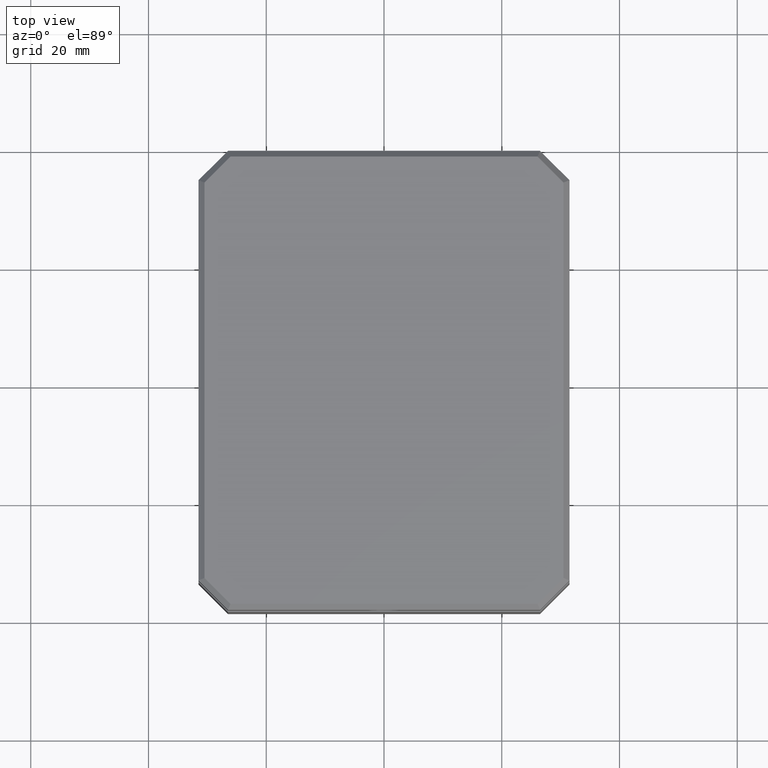
[diagram: clean part render]
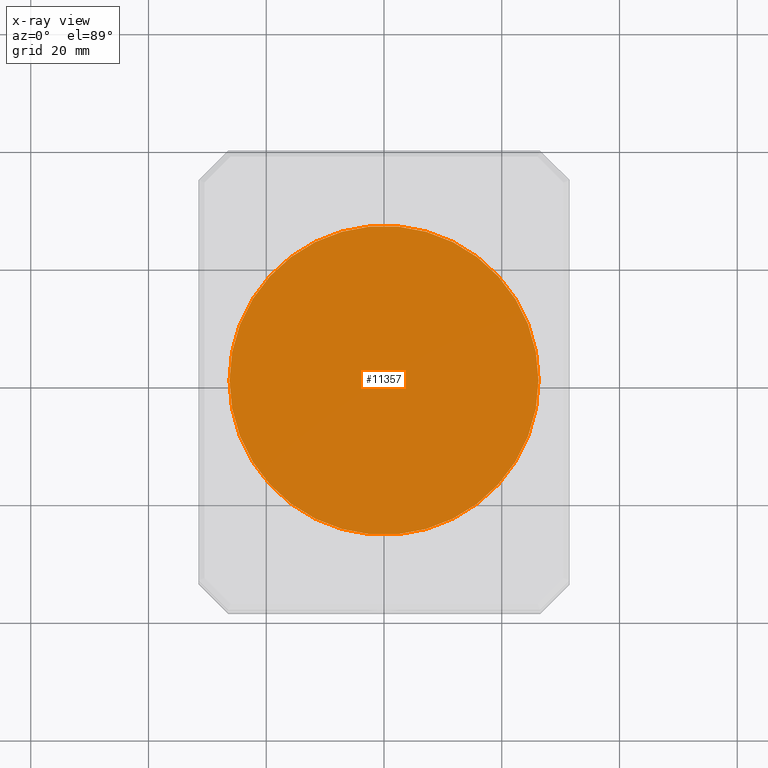
[diagram: x-ray — body ghosted, one internal face saturated and labeled with its STEP entity id]
A machine part, top view, then the same camera in x-ray: the body is ghosted and one INTERNAL B-rep face — a face not visible from any outside direction — is saturated and labeled: STEP entity #11357.
In plain terms, the highlighted planar face has unit normal (0, 0, -1).
Its self-contained STEP definition (entity closure, byte-faithful):
#1351 = DIRECTION ( 'NONE',  ( 0.000000000000000000, 0.000000000000000000, -1.000000000000000000 ) ) ;
#1449 = CARTESIAN_POINT ( 'NONE',  ( 0.000000000000000000, 0.000000000000000000, 8.000000000000000000 ) ) ;
#3208 = AXIS2_PLACEMENT_3D ( 'NONE', #13239, #26807, #5245 ) ;
#3633 = DIRECTION ( 'NONE',  ( -1.000000000000000000, 0.000000000000000000, 0.000000000000000000 ) ) ;
#4143 = FACE_OUTER_BOUND ( 'NONE', #9278, .T. ) ;
#4608 = CIRCLE ( 'NONE', #21871, 26.25000000000000000 ) ;
#4899 = VERTEX_POINT ( 'NONE', #25860 ) ;
#5245 = DIRECTION ( 'NONE',  ( -1.000000000000000000, 0.000000000000000000, 0.000000000000000000 ) ) ;
#6130 = CARTESIAN_POINT ( 'NONE',  ( 0.000000000000000000, 0.000000000000000000, 8.000000000000000000 ) ) ;
#8372 = AXIS2_PLACEMENT_3D ( 'NONE', #1449, #1351, #23122 ) ;
#8999 = ORIENTED_EDGE ( 'NONE', *, *, #23771, .T. ) ;
#9278 = EDGE_LOOP ( 'NONE', ( #13942, #8999 ) ) ;
#11357 = ADVANCED_FACE ( 'NONE', ( #4143 ), #27721, .T. ) ;
#13239 = CARTESIAN_POINT ( 'NONE',  ( 0.000000000000000000, 0.000000000000000000, 8.000000000000000000 ) ) ;
#13577 = EDGE_CURVE ( 'NONE', #4899, #19639, #30270, .T. ) ;
#13942 = ORIENTED_EDGE ( 'NONE', *, *, #13577, .T. ) ;
#14590 = CARTESIAN_POINT ( 'NONE',  ( 26.25000000000000000, 3.214697847761801978E-15, 8.000000000000000000 ) ) ;
#19639 = VERTEX_POINT ( 'NONE', #14590 ) ;
#21871 = AXIS2_PLACEMENT_3D ( 'NONE', #6130, #22792, #3633 ) ;
#22792 = DIRECTION ( 'NONE',  ( 0.000000000000000000, 0.000000000000000000, -1.000000000000000000 ) ) ;
#23122 = DIRECTION ( 'NONE',  ( -1.000000000000000000, 0.000000000000000000, -0.000000000000000000 ) ) ;
#23771 = EDGE_CURVE ( 'NONE', #19639, #4899, #4608, .T. ) ;
#25860 = CARTESIAN_POINT ( 'NONE',  ( -26.25000000000000000, 0.000000000000000000, 8.000000000000000000 ) ) ;
#26807 = DIRECTION ( 'NONE',  ( 0.000000000000000000, 0.000000000000000000, -1.000000000000000000 ) ) ;
#27721 = PLANE ( 'NONE',  #8372 ) ;
#30270 = CIRCLE ( 'NONE', #3208, 26.25000000000000000 ) ;